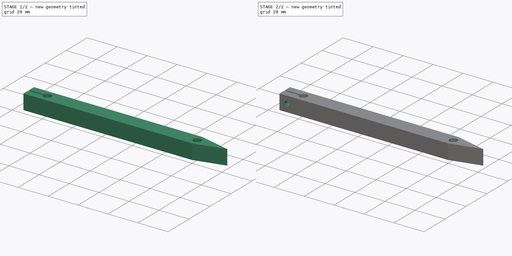
[diagram: build sequence overview — one tinted view per stage of 2, left to right]
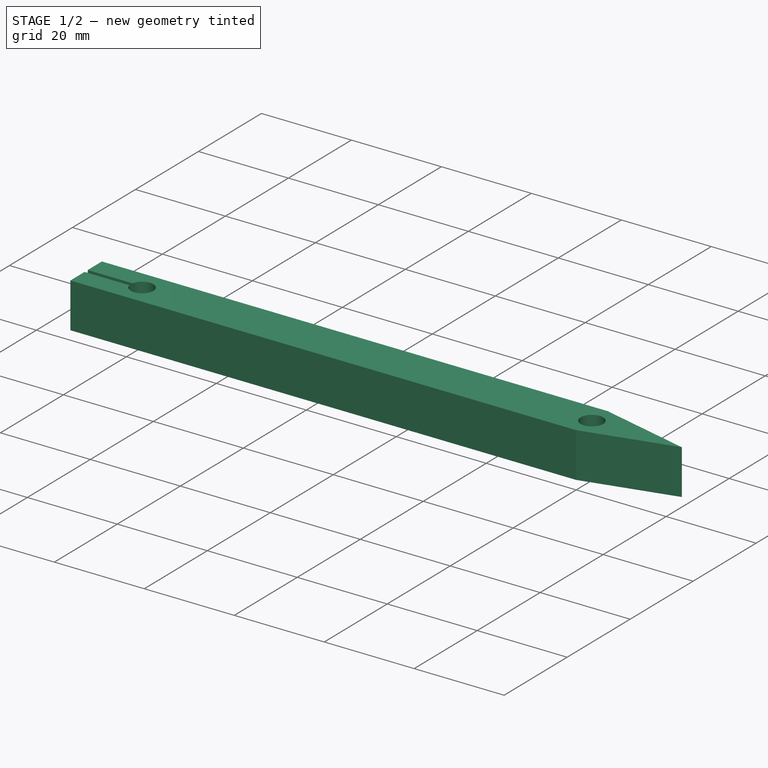
[diagram: stage 1 of 2 — iso view after this stage's code; geometry added in this stage tinted green]
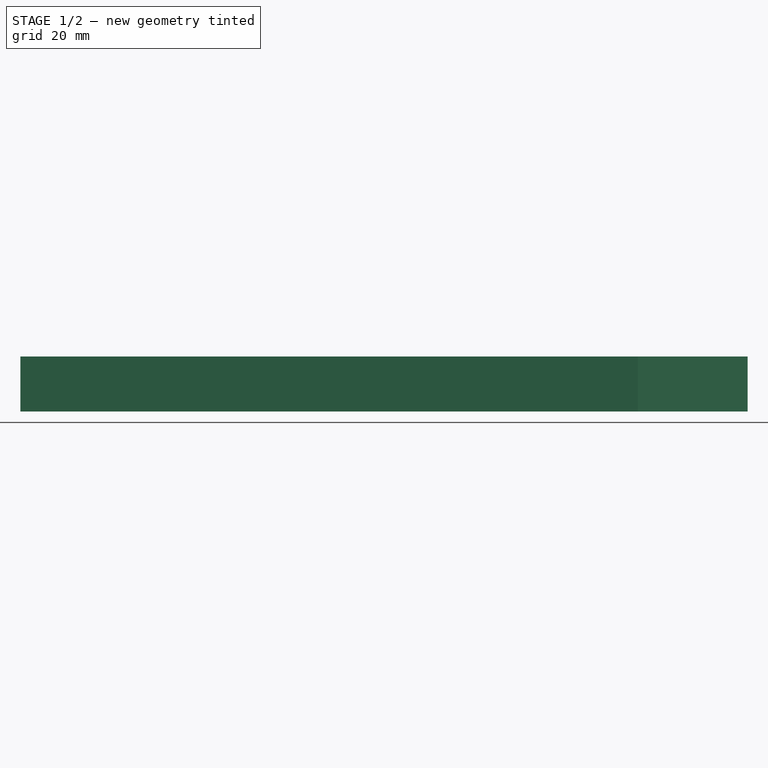
[diagram: stage 1 of 2 — front view after this stage's code; geometry added in this stage tinted green]
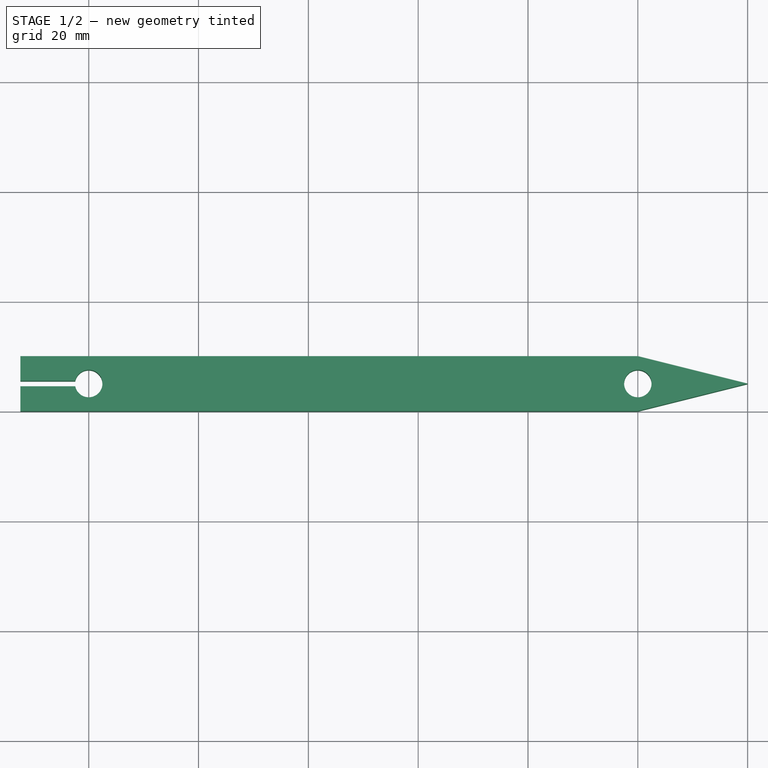
[diagram: stage 1 of 2 — top view after this stage's code; geometry added in this stage tinted green]
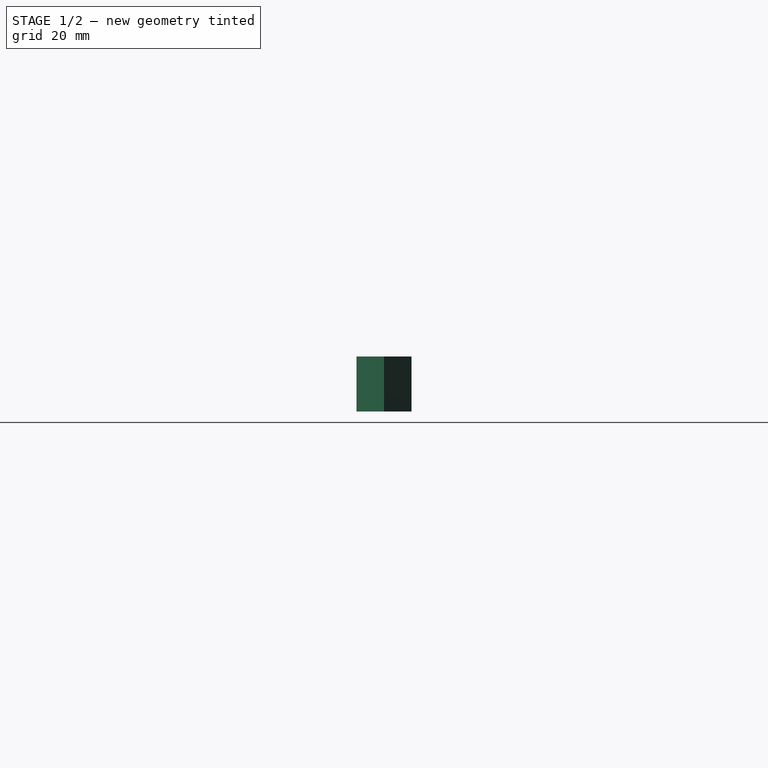
[diagram: stage 1 of 2 — right view after this stage's code; geometry added in this stage tinted green]
FCSTD DOCUMENT  (FreeCAD 0.19R23777 (Git))
Label: indicator
License: All rights reserved
LicenseURL: http://en.wikipedia.org/wiki/All_rights_reserved
objects: Sketcher::SketchObject×2, PartDesign::Pad×1, PartDesign::Pocket×1, PartDesign::Body×1
note: 7 computed .brp shape members not serialized (recipe doc carries the construction recipe); baked Part::Feature solids carry a one-line shape summary decoded from their .brp

FEATURE [Sketcher::SketchObject] Sketch001
  FullyConstrained = true
  MapMode = 5
  Support = -> [XY_Plane001]
  sketch-geometry (11):
    g0: LineSegment StartX=0 StartY=0 StartZ=0 EndX=100 EndY=0 EndZ=0
    g1: LineSegment StartX=100 StartY=0 StartZ=0 EndX=120 EndY=5 EndZ=0
    g2: LineSegment StartX=120 StartY=5 StartZ=0 EndX=100 EndY=10 EndZ=0
    g3: LineSegment StartX=100 StartY=10 StartZ=0 EndX=-12.4495 EndY=10 EndZ=0
    g4: ArcOfCircle CenterX=0 CenterY=5 CenterZ=0 NormalX=0 NormalY=0 NormalZ=1 AngleXU=0 Radius=2.5 StartAngle=3.34295 EndAngle=9.22342
    g5: Circle CenterX=100 CenterY=5 CenterZ=0 NormalX=0 NormalY=0 NormalZ=1 AngleXU=0 Radius=2.5
    g6: LineSegment StartX=-12.4495 StartY=10 StartZ=0 EndX=-12.4495 EndY=5.5 EndZ=0
    g7: LineSegment StartX=-12.4495 StartY=5.5 StartZ=0 EndX=-2.44949 EndY=5.5 EndZ=0
    g8: LineSegment StartX=-2.44949 StartY=4.5 StartZ=0 EndX=-12.4495 EndY=4.5 EndZ=0
    g9: LineSegment StartX=-12.4495 StartY=4.5 StartZ=0 EndX=-12.4495 EndY=0 EndZ=0
    g10: LineSegment StartX=-12.4495 StartY=0 StartZ=0 EndX=0 EndY=0 EndZ=0
  constraints (33):
    c: Horizontal(g0)
    c: Coincident(g0,g-1)
    c: DistanceX(g0,g0) = 100
    c: Vertical(g2,g0)
    c: Horizontal(g3)
    c: Coincident(g3,g2)
    c: Coincident(g1,g2)
    c: Coincident(g1,g0)
    c: DistanceY(g0,g2) = 10
    c: Radius(g4) = 2.5
    c: Vertical(g4,g0)
    c: DistanceY(g0,g4) = 5
    c: DistanceX(g0,g1) = 20
    c: DistanceY(g0,g1) = 5
    c: Radius(g5) = 2.5
    c: Vertical(g0,g5)
    c: Coincident(g6,g7)
    c: Coincident(g8,g9)
    c: Coincident(g9,g10)
    c: Coincident(g10,g0)
    c: Horizontal(g10)
    c: Horizontal(g8)
    c: Horizontal(g7)
    c: Vertical(g6)
    c: Vertical(g9)
    c: Vertical(g6,g8)
    c: Coincident(g4,g8)
    c: Coincident(g7,g4)
    c: DistanceY(g8,g6) = 1
    c: Coincident(g3,g6)
    c: Equal(g9,g6)
    c: DistanceX(g8,g4) = 10
    c: Horizontal(g5,g1)
FEATURE [PartDesign::Pad] Pad
  AllowMultiFace = false
  Direction = (1,1,1)
  Length = 10
  Length2 = 100
  Profile = -> Sketch001
  Type = 0
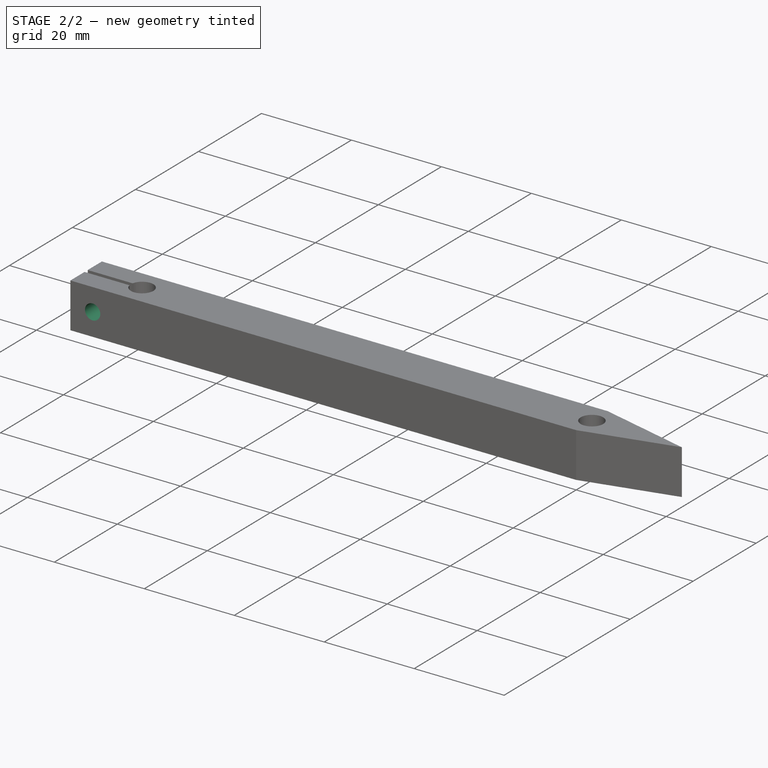
[diagram: stage 2 of 2 — iso view after this stage's code; geometry added in this stage tinted green]
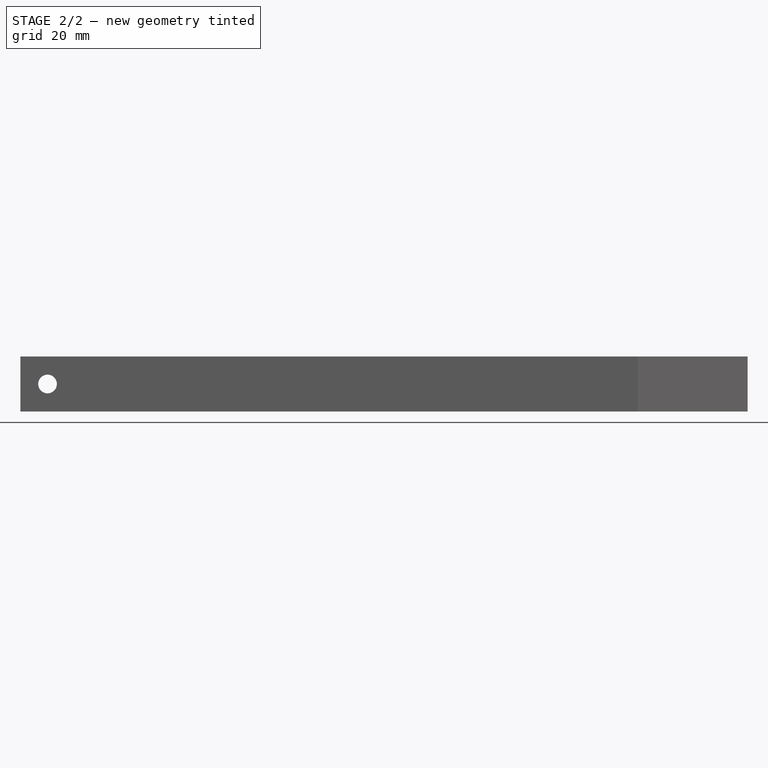
[diagram: stage 2 of 2 — front view after this stage's code; geometry added in this stage tinted green]
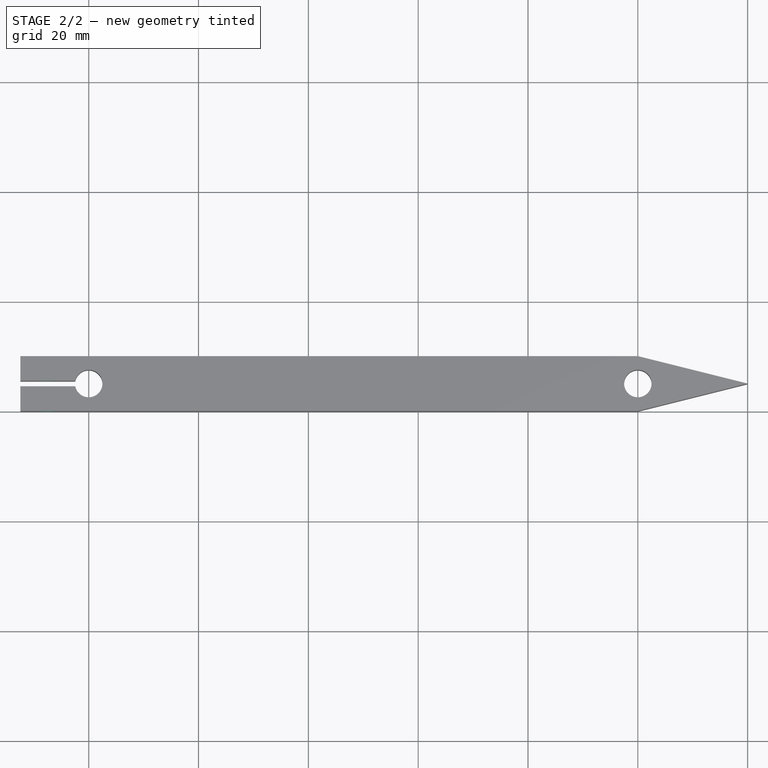
[diagram: stage 2 of 2 — top view after this stage's code; geometry added in this stage tinted green]
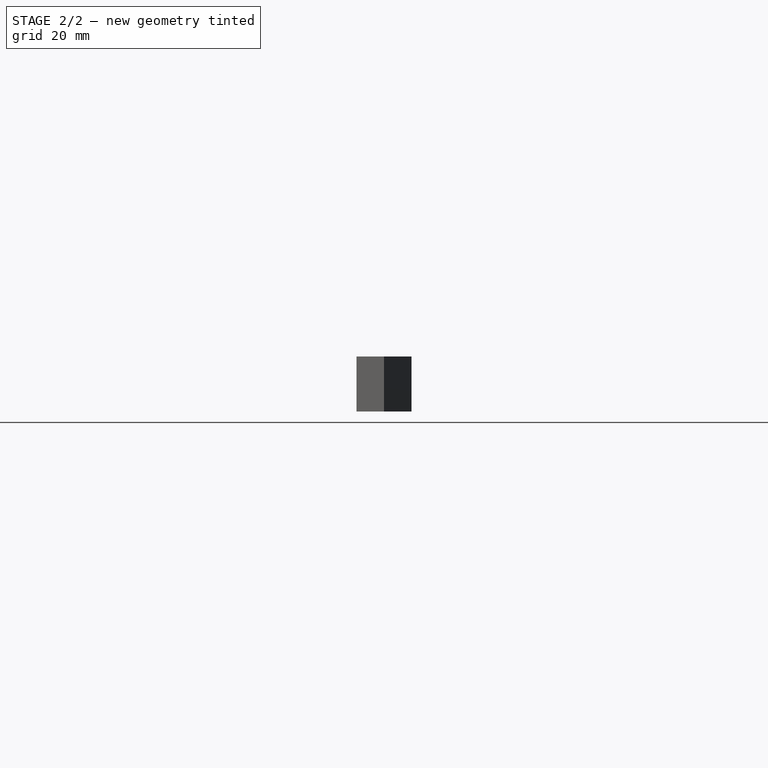
[diagram: stage 2 of 2 — right view after this stage's code; geometry added in this stage tinted green]
FEATURE [Sketcher::SketchObject] Sketch
  FullyConstrained = true
  MapMode = 5
  Placement = pos=(0,10,0) rot=(0,0.707107,0.707107;3.14159rad)
  Support = -> [Pad]
  sketch-geometry (1):
    g0: Circle CenterX=7.5 CenterY=5 CenterZ=0 NormalX=0 NormalY=0 NormalZ=1 AngleXU=0 Radius=1.7
  constraints (3):
    c: DistanceX(g-1,g0) = 7.5
    c: DistanceY(g-1,g0) = 5
    c: Radius(g0) = 1.7
FEATURE [PartDesign::Pocket] Pocket
  BaseFeature = -> Pad
  Length = 12
  Length2 = 100
  Profile = -> Sketch
  Type = 0
FEATURE [PartDesign::Body] Body
  Group = -> [Sketch001,Pad,Sketch,Pocket]
  Origin = -> Origin001
  Tip = -> Pocket
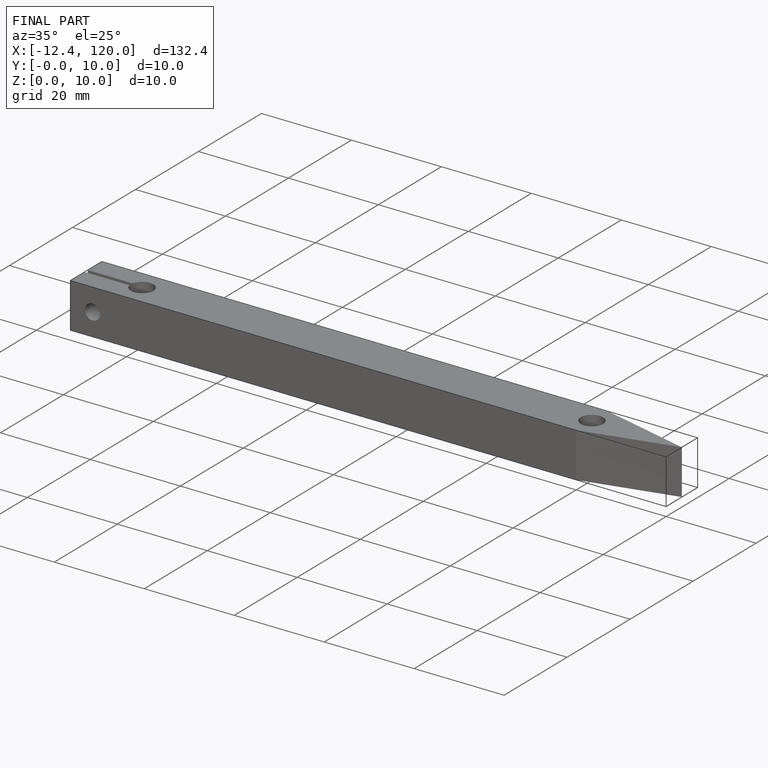
[diagram: finished part — iso view with bounding-box wireframe]
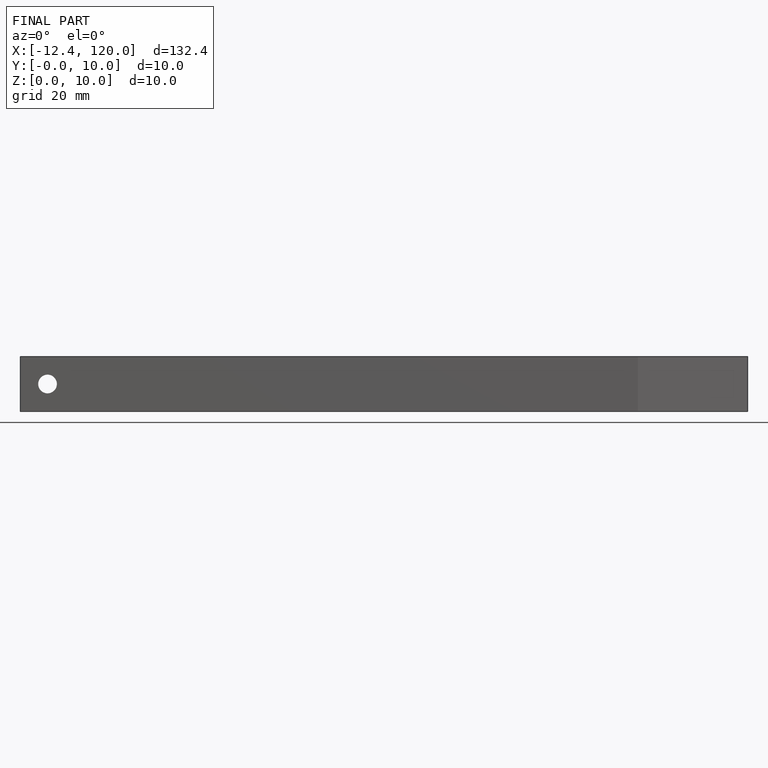
[diagram: finished part — front view with bounding-box wireframe]
